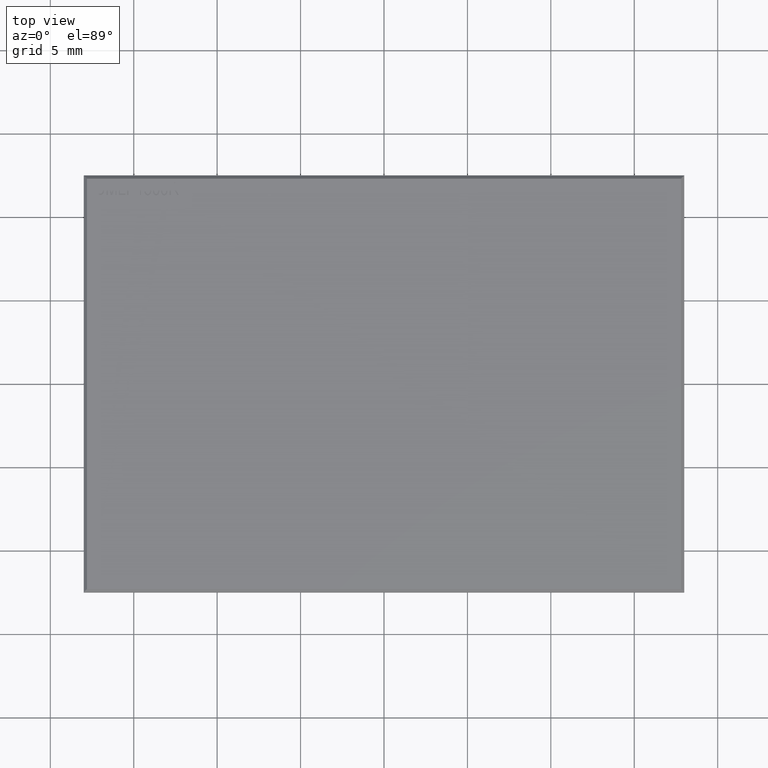
[diagram: clean part render]
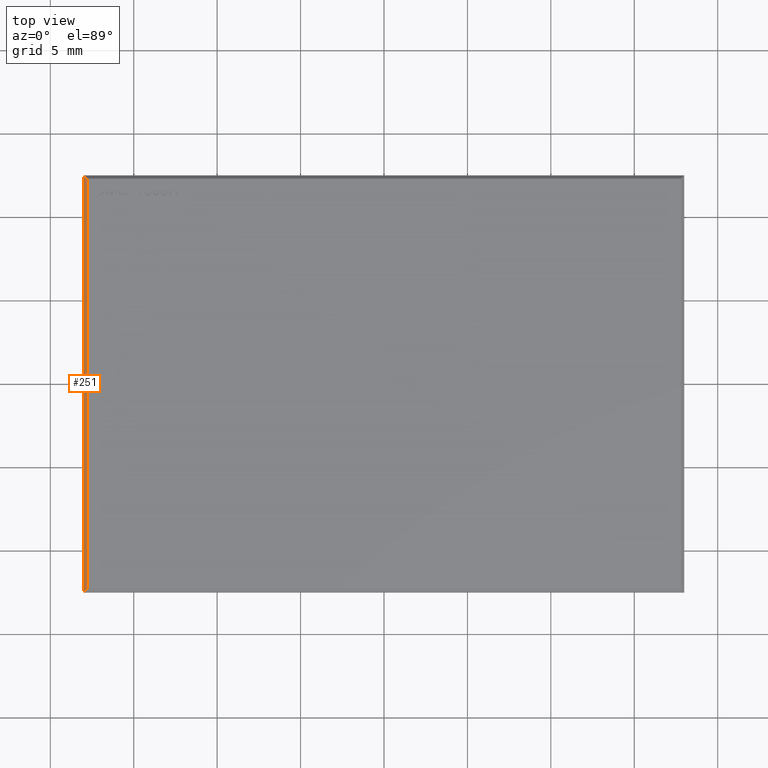
[diagram: same view with one face highlighted and labeled with its STEP entity id]
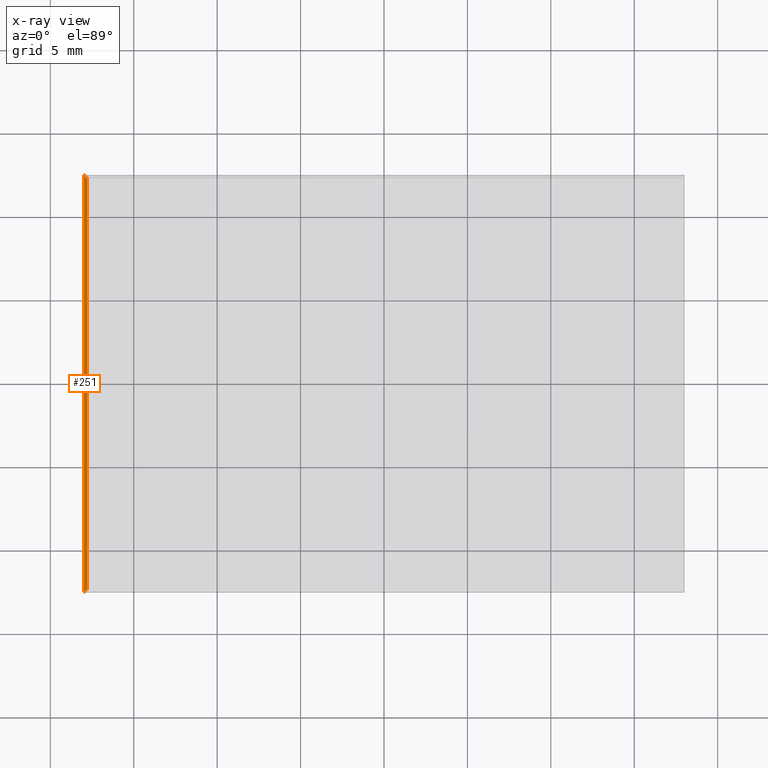
[diagram: x-ray of the same camera — body ghosted, the highlighted face saturated]
A machine part, top view. The second image highlights one B-rep face of the part: STEP entity #251.
The next image is the same camera in x-ray: the body ghosted, the highlighted face saturated — about 0% of this face is hidden behind the body in this view.
In plain terms, the highlighted planar face has unit normal (-0.7071, 0, 0.7071).
Its self-contained STEP definition (entity closure, byte-faithful):
#18 = EDGE_CURVE ( 'NONE', #3652, #3623, #285, .T. ) ;
#133 = EDGE_CURVE ( 'NONE', #2826, #1864, #4088, .T. ) ;
#251 = ADVANCED_FACE ( 'NONE', ( #3616 ), #867, .T. ) ;
#285 = LINE ( 'NONE', #4783, #5620 ) ;
#315 = EDGE_CURVE ( 'NONE', #3652, #1864, #2105, .T. ) ;
#443 = CARTESIAN_POINT ( 'NONE',  ( -18.00000000000000400, -12.49999999999999500, 0.2999999999999977700 ) ) ;
#656 = EDGE_LOOP ( 'NONE', ( #5569, #2446, #6163, #3160 ) ) ;
#837 = EDGE_CURVE ( 'NONE', #2826, #3623, #3690, .T. ) ;
#867 = PLANE ( 'NONE',  #1235 ) ;
#896 = CARTESIAN_POINT ( 'NONE',  ( -17.80000000000000400, 12.30000000000000800, 0.5000000000000000000 ) ) ;
#1235 = AXIS2_PLACEMENT_3D ( 'NONE', #3437, #1918, #5489 ) ;
#1721 = DIRECTION ( 'NONE',  ( 0.5773502691896224000, 0.5773502691896224000, 0.5773502691896323900 ) ) ;
#1864 = VERTEX_POINT ( 'NONE', #4927 ) ;
#1918 = DIRECTION ( 'NONE',  ( -0.7071067811865536800, 0.0000000000000000000, 0.7071067811865414700 ) ) ;
#1945 = DIRECTION ( 'NONE',  ( 0.0000000000000000000, 1.000000000000000000, 0.0000000000000000000 ) ) ;
#2105 = LINE ( 'NONE', #2456, #6175 ) ;
#2327 = VECTOR ( 'NONE', #5896, 1000.000000000000000 ) ;
#2333 = CARTESIAN_POINT ( 'NONE',  ( -17.80000000000000400, -12.49999999999999500, 0.5000000000000000000 ) ) ;
#2446 = ORIENTED_EDGE ( 'NONE', *, *, #315, .F. ) ;
#2456 = CARTESIAN_POINT ( 'NONE',  ( -18.00000000000000400, 12.50000000000000500, 0.2999999999999977700 ) ) ;
#2826 = VERTEX_POINT ( 'NONE', #896 ) ;
#3160 = ORIENTED_EDGE ( 'NONE', *, *, #837, .F. ) ;
#3437 = CARTESIAN_POINT ( 'NONE',  ( -17.80000000000000400, 0.0000000000000000000, 0.5000000000000000000 ) ) ;
#3616 = FACE_OUTER_BOUND ( 'NONE', #656, .T. ) ;
#3623 = VERTEX_POINT ( 'NONE', #6546 ) ;
#3652 = VERTEX_POINT ( 'NONE', #443 ) ;
#3690 = LINE ( 'NONE', #2333, #2327 ) ;
#4088 = LINE ( 'NONE', #6342, #5270 ) ;
#4783 = CARTESIAN_POINT ( 'NONE',  ( -11.86666666666673500, -6.366666666666731100, 6.433333333333367300 ) ) ;
#4927 = CARTESIAN_POINT ( 'NONE',  ( -18.00000000000000400, 12.50000000000000500, 0.2999999999999977700 ) ) ;
#5270 = VECTOR ( 'NONE', #6365, 1000.000000000000100 ) ;
#5489 = DIRECTION ( 'NONE',  ( 0.0000000000000000000, 1.000000000000000000, 0.0000000000000000000 ) ) ;
#5569 = ORIENTED_EDGE ( 'NONE', *, *, #133, .T. ) ;
#5620 = VECTOR ( 'NONE', #1721, 1000.000000000000100 ) ;
#5896 = DIRECTION ( 'NONE',  ( 0.0000000000000000000, -1.000000000000000000, 0.0000000000000000000 ) ) ;
#6163 = ORIENTED_EDGE ( 'NONE', *, *, #18, .T. ) ;
#6175 = VECTOR ( 'NONE', #1945, 1000.000000000000000 ) ;
#6342 = CARTESIAN_POINT ( 'NONE',  ( -11.86666666666673500, 6.366666666666741700, 6.433333333333367300 ) ) ;
#6365 = DIRECTION ( 'NONE',  ( -0.5773502691896224000, 0.5773502691896224000, -0.5773502691896323900 ) ) ;
#6546 = CARTESIAN_POINT ( 'NONE',  ( -17.80000000000000400, -12.29999999999999700, 0.5000000000000000000 ) ) ;